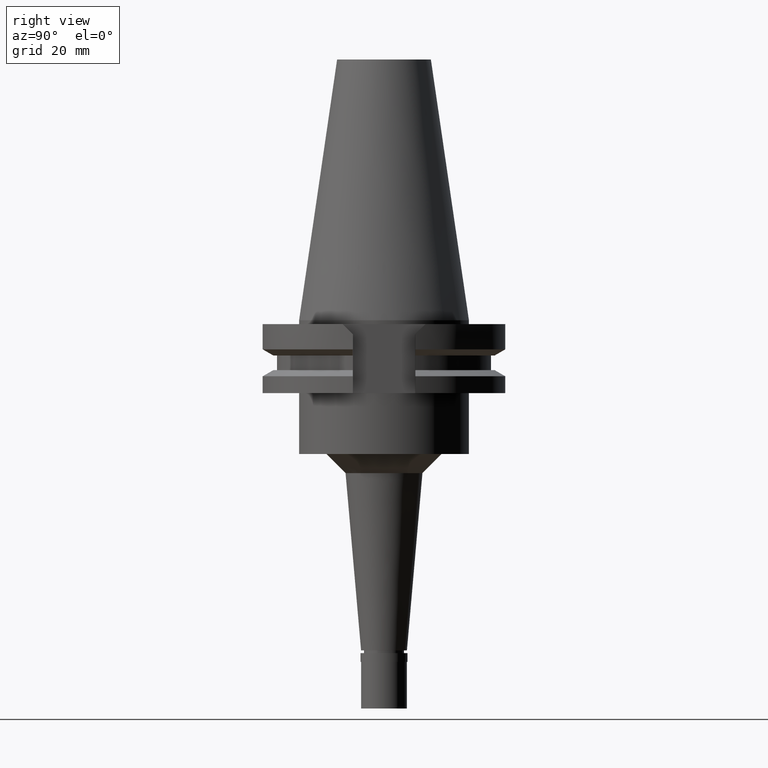
[diagram: clean part render]
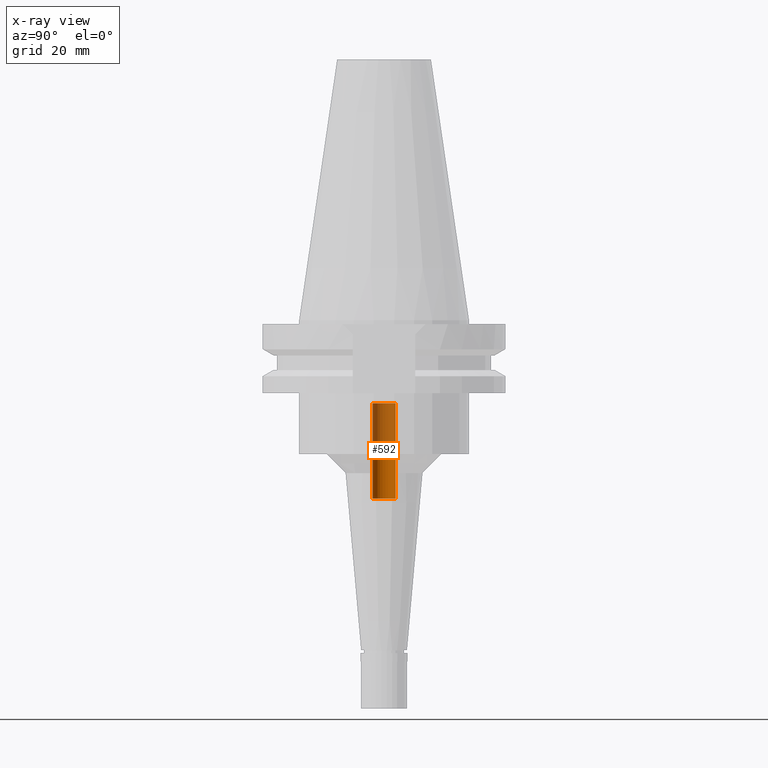
[diagram: x-ray — body ghosted, one internal face saturated and labeled with its STEP entity id]
A machine part, right view, then the same camera in x-ray: the body is ghosted and one INTERNAL B-rep face — a face not visible from any outside direction — is saturated and labeled: STEP entity #592.
In plain terms, the highlighted cylindrical surface (edge-blend (fillet) strip) has radius 3 mm, axis along (0, 0, -1).
Its self-contained STEP definition (entity closure, byte-faithful):
#16 = ORIENTED_EDGE ( 'NONE', *, *, #2419, .F. ) ;
#61 = ORIENTED_EDGE ( 'NONE', *, *, #248, .T. ) ;
#62 = CARTESIAN_POINT ( 'NONE',  ( 0.0000000000000000000, -3.000000000000000000, -21.75000000000000000 ) ) ;
#104 = LINE ( 'NONE', #1759, #1071 ) ;
#111 = CYLINDRICAL_SURFACE ( 'NONE', #2506, 3.000000000000000000 ) ;
#118 = CARTESIAN_POINT ( 'NONE',  ( 0.0000000000000000000, 3.000000000000000000, -46.75000000000000000 ) ) ;
#248 = EDGE_CURVE ( 'NONE', #1673, #1214, #1511, .T. ) ;
#420 = CARTESIAN_POINT ( 'NONE',  ( 0.0000000000000000000, 2.162022075384999775E-14, -46.75000000000000000 ) ) ;
#512 = CARTESIAN_POINT ( 'NONE',  ( 0.0000000000000000000, 3.000000000000000000, -46.75000000000000000 ) ) ;
#592 = ADVANCED_FACE ( 'NONE', ( #1349 ), #111, .F. ) ;
#605 = CIRCLE ( 'NONE', #2835, 3.000000000000000000 ) ;
#748 = DIRECTION ( 'NONE',  ( 0.0000000000000000000, -1.000000000000000000, 0.0000000000000000000 ) ) ;
#879 = ORIENTED_EDGE ( 'NONE', *, *, #943, .T. ) ;
#920 = EDGE_CURVE ( 'NONE', #1214, #2051, #605, .T. ) ;
#943 = EDGE_CURVE ( 'NONE', #3060, #1673, #1475, .T. ) ;
#979 = DIRECTION ( 'NONE',  ( 0.0000000000000000000, 1.000000000000000000, 0.0000000000000000000 ) ) ;
#1059 = CARTESIAN_POINT ( 'NONE',  ( 0.0000000000000000000, -3.000000000000000000, -46.75000000000000000 ) ) ;
#1071 = VECTOR ( 'NONE', #2722, 1000.000000000000000 ) ;
#1189 = CARTESIAN_POINT ( 'NONE',  ( 0.0000000000000000000, 2.162022075384999775E-14, -21.75000000000000000 ) ) ;
#1214 = VERTEX_POINT ( 'NONE', #1303 ) ;
#1303 = CARTESIAN_POINT ( 'NONE',  ( 0.0000000000000000000, 3.000000000000000000, -21.75000000000000000 ) ) ;
#1349 = FACE_OUTER_BOUND ( 'NONE', #1425, .T. ) ;
#1425 = EDGE_LOOP ( 'NONE', ( #1668, #16, #879, #61 ) ) ;
#1475 = CIRCLE ( 'NONE', #1683, 3.000000000000000000 ) ;
#1511 = LINE ( 'NONE', #512, #2137 ) ;
#1668 = ORIENTED_EDGE ( 'NONE', *, *, #920, .T. ) ;
#1673 = VERTEX_POINT ( 'NONE', #118 ) ;
#1683 = AXIS2_PLACEMENT_3D ( 'NONE', #420, #2925, #3111 ) ;
#1759 = CARTESIAN_POINT ( 'NONE',  ( 0.0000000000000000000, -3.000000000000000000, -46.75000000000000000 ) ) ;
#1964 = DIRECTION ( 'NONE',  ( 0.0000000000000000000, 0.0000000000000000000, -1.000000000000000000 ) ) ;
#2051 = VERTEX_POINT ( 'NONE', #62 ) ;
#2137 = VECTOR ( 'NONE', #2489, 1000.000000000000000 ) ;
#2212 = CARTESIAN_POINT ( 'NONE',  ( 0.0000000000000000000, 2.162022075384999775E-14, 76.54250000000000398 ) ) ;
#2419 = EDGE_CURVE ( 'NONE', #3060, #2051, #104, .T. ) ;
#2489 = DIRECTION ( 'NONE',  ( 0.0000000000000000000, 0.0000000000000000000, 1.000000000000000000 ) ) ;
#2506 = AXIS2_PLACEMENT_3D ( 'NONE', #2212, #1964, #748 ) ;
#2722 = DIRECTION ( 'NONE',  ( 0.0000000000000000000, 0.0000000000000000000, 1.000000000000000000 ) ) ;
#2835 = AXIS2_PLACEMENT_3D ( 'NONE', #1189, #2906, #979 ) ;
#2906 = DIRECTION ( 'NONE',  ( 0.0000000000000000000, 0.0000000000000000000, 1.000000000000000000 ) ) ;
#2925 = DIRECTION ( 'NONE',  ( 0.0000000000000000000, 0.0000000000000000000, -1.000000000000000000 ) ) ;
#3060 = VERTEX_POINT ( 'NONE', #1059 ) ;
#3111 = DIRECTION ( 'NONE',  ( 0.0000000000000000000, -1.000000000000000000, 0.0000000000000000000 ) ) ;